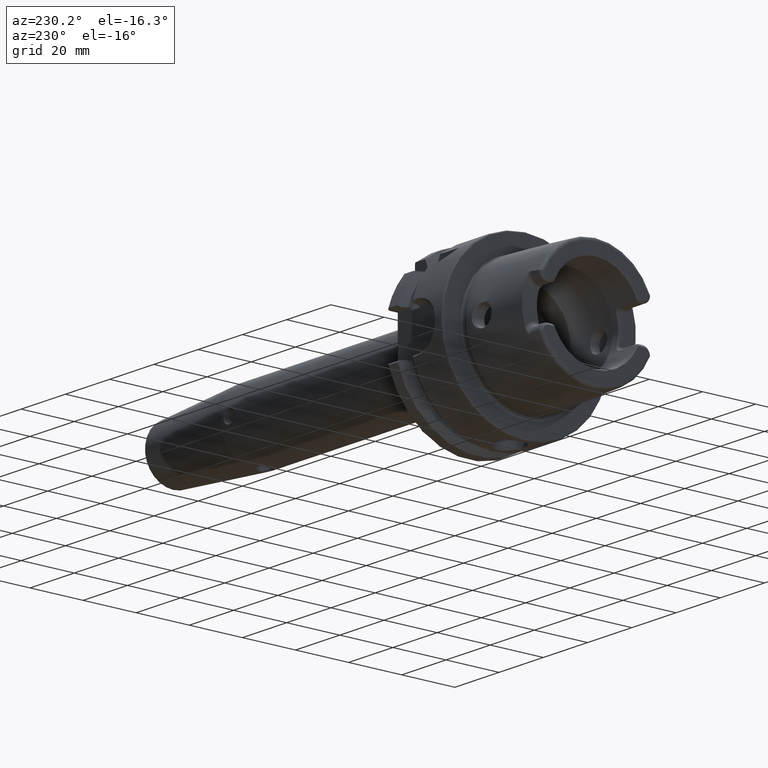
[diagram: clean part render]
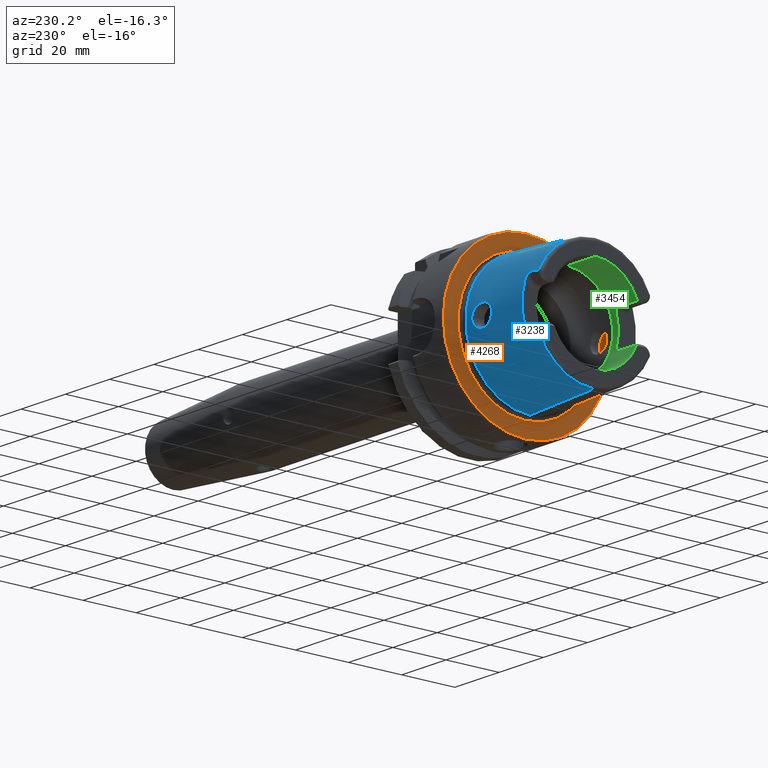
[diagram: same view with three faces highlighted in distinct colors, each labeled with its STEP entity id]
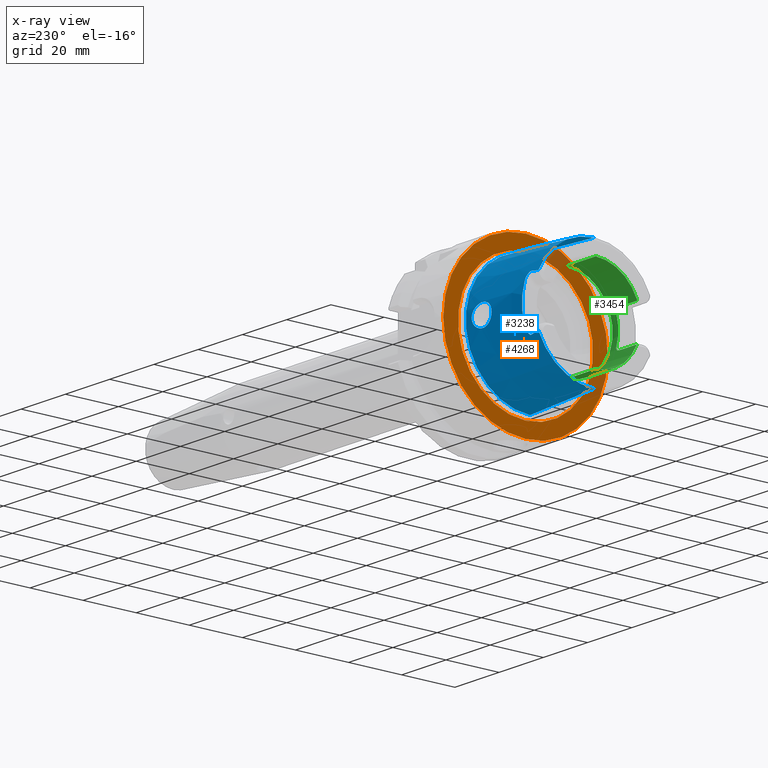
[diagram: x-ray of the same camera — body ghosted, the three highlighted faces saturated]
A machine part, auxiliary view with three faces highlighted in distinct colors.
The next image is the same camera in x-ray (body ghosted, the three faces saturated) — at least one of them is partly hidden behind the body in this view.
Their STEP definitions:

[orange] entity #4268 — the highlighted planar face has unit normal (1, 0, 0).
#1111=CARTESIAN_POINT('',(0.E0,0.E0,0.E0));
#1112=DIRECTION('',(1.E0,0.E0,0.E0));
#1113=DIRECTION('',(0.E0,0.E0,-1.E0));
#1114=AXIS2_PLACEMENT_3D('',#1111,#1112,#1113);
#1116=CARTESIAN_POINT('',(0.E0,0.E0,0.E0));
#1117=DIRECTION('',(1.E0,0.E0,0.E0));
#1118=DIRECTION('',(0.E0,0.E0,1.E0));
#1119=AXIS2_PLACEMENT_3D('',#1116,#1117,#1118);
#1121=CARTESIAN_POINT('',(0.E0,0.E0,0.E0));
#1122=DIRECTION('',(-1.E0,0.E0,0.E0));
#1123=DIRECTION('',(0.E0,0.E0,1.E0));
#1124=AXIS2_PLACEMENT_3D('',#1121,#1122,#1123);
#1126=CARTESIAN_POINT('',(0.E0,0.E0,0.E0));
#1127=DIRECTION('',(-1.E0,0.E0,0.E0));
#1128=DIRECTION('',(0.E0,0.E0,-1.E0));
#1129=AXIS2_PLACEMENT_3D('',#1126,#1127,#1128);
#2743=CARTESIAN_POINT('',(0.E0,0.E0,-2.54204E1));
#2744=CARTESIAN_POINT('',(0.E0,0.E0,2.54204E1));
#2745=VERTEX_POINT('',#2743);
#2746=VERTEX_POINT('',#2744);
#3072=CARTESIAN_POINT('',(0.E0,0.E0,3.1E1));
#3073=CARTESIAN_POINT('',(0.E0,1.138921523207E-14,-3.1E1));
#3074=VERTEX_POINT('',#3072);
#3075=VERTEX_POINT('',#3073);
#4252=CARTESIAN_POINT('',(0.E0,0.E0,0.E0));
#4253=DIRECTION('',(1.E0,0.E0,0.E0));
#4254=DIRECTION('',(0.E0,0.E0,1.E0));
#4255=AXIS2_PLACEMENT_3D('',#4252,#4253,#4254);
#4256=PLANE('',#4255);
#4257=ORIENTED_EDGE('',*,*,#4242,.F.);
#4259=ORIENTED_EDGE('',*,*,#4258,.F.);
#4260=EDGE_LOOP('',(#4257,#4259));
#4261=FACE_OUTER_BOUND('',#4260,.F.);
#4263=ORIENTED_EDGE('',*,*,#4262,.F.);
#4265=ORIENTED_EDGE('',*,*,#4264,.F.);
#4266=EDGE_LOOP('',(#4263,#4265));
#4267=FACE_BOUND('',#4266,.F.);
#4268=ADVANCED_FACE('',(#4261,#4267),#4256,.F.);
#1115=CIRCLE('',#1114,2.54204E1);
#1120=CIRCLE('',#1119,2.54204E1);
#1125=CIRCLE('',#1124,3.1E1);
#1130=CIRCLE('',#1129,3.1E1);
#4242=EDGE_CURVE('',#3074,#3075,#1125,.T.);
#4258=EDGE_CURVE('',#3075,#3074,#1130,.T.);
#4262=EDGE_CURVE('',#2745,#2746,#1115,.T.);
#4264=EDGE_CURVE('',#2746,#2745,#1120,.T.);

[blue] entity #3238 — the highlighted conical surface has half-angle 2.868 deg.
#2=CARTESIAN_POINT('',(-3.086004333271E1,0.E0,0.E0));
#3=DIRECTION('',(-1.E0,0.E0,0.E0));
#4=DIRECTION('',(0.E0,9.163649919573E-1,-4.003438540993E-1));
#5=AXIS2_PLACEMENT_3D('',#2,#3,#4);
#7=CARTESIAN_POINT('',(-2.000078966146E0,0.E0,0.E0));
#8=DIRECTION('',(-1.E0,0.E0,0.E0));
#9=DIRECTION('',(0.E0,0.E0,1.E0));
#10=AXIS2_PLACEMENT_3D('',#7,#8,#9);
#12=CARTESIAN_POINT('',(-3.086004333271E1,0.E0,0.E0));
#13=DIRECTION('',(-1.E0,0.E0,0.E0));
#14=DIRECTION('',(0.E0,0.E0,1.E0));
#15=AXIS2_PLACEMENT_3D('',#12,#13,#14);
#17=CARTESIAN_POINT('',(-3.086004333271E1,2.086981840766E1,9.117659021249E0));
#18=CARTESIAN_POINT('',(-3.053477016229E1,2.087026407252E1,9.157343468693E0));
#19=CARTESIAN_POINT('',(-2.990731725920E1,2.086951854295E1,9.237138009720E0));
#20=CARTESIAN_POINT('',(-2.903749175968E1,2.086333964170E1,9.358087934639E0));
#21=CARTESIAN_POINT('',(-2.823306039663E1,2.085177035668E1,9.481640423811E0));
#22=CARTESIAN_POINT('',(-2.773735868303E1,2.083999307163E1,9.567019157167E0));
#23=CARTESIAN_POINT('',(-2.75E1,2.083289994314E1,9.610781850025E0));
#25=CARTESIAN_POINT('',(-3.086004333271E1,2.086981840766E1,-9.117659021249E0));
#26=CARTESIAN_POINT('',(-3.053477016229E1,2.087026407252E1,-9.157343468693E0));
#27=CARTESIAN_POINT('',(-2.990731725920E1,2.086951854295E1,-9.237138009720E0));
#28=CARTESIAN_POINT('',(-2.903749175968E1,2.086333964170E1,-9.358087934639E0));
#29=CARTESIAN_POINT('',(-2.823306039663E1,2.085177035668E1,-9.481640423811E0));
#30=CARTESIAN_POINT('',(-2.773735868303E1,2.083999307163E1,-9.567019157167E0));
#31=CARTESIAN_POINT('',(-2.75E1,2.083289994314E1,-9.610781850025E0));
#33=CARTESIAN_POINT('',(-1.304439190524E1,2.366711362744E1,0.E0));
#34=CARTESIAN_POINT('',(-1.304439190524E1,2.366711362744E1,-2.692296203512E-1));
#35=CARTESIAN_POINT('',(-1.298596588633E1,2.366095548437E1,-7.915478808268E-1));
#36=CARTESIAN_POINT('',(-1.273593529021E1,2.363615494345E1,-1.538491121410E0));
#37=CARTESIAN_POINT('',(-1.234085581199E1,2.360161826823E1,-2.213541098239E0));
#38=CARTESIAN_POINT('',(-1.181419542757E1,2.356442533815E1,-2.805250832799E0));
#39=CARTESIAN_POINT('',(-1.117137997799E1,2.353291472613E1,-3.293080560877E0));
#40=CARTESIAN_POINT('',(-1.044411763446E1,2.351584278645E1,-3.653416998785E0));
#41=CARTESIAN_POINT('',(-9.665961713705E0,2.351947741575E1,-3.874611692795E0));
#42=CARTESIAN_POINT('',(-8.868249773196E0,2.354653765362E1,-3.954597009881E0));
#43=CARTESIAN_POINT('',(-8.066538054402E0,2.359739017255E1,-3.894486132971E0));
#44=CARTESIAN_POINT('',(-7.282895667530E0,2.366966238930E1,-3.694792672991E0));
#45=CARTESIAN_POINT('',(-6.526798753436E0,2.376050761714E1,-3.345491144455E0));
#46=CARTESIAN_POINT('',(-5.863814319433E0,2.385701628222E1,-2.868853306938E0));
#47=CARTESIAN_POINT('',(-5.312865344565E0,2.394874241525E1,-2.282242940895E0));
#48=CARTESIAN_POINT('',(-4.894562356430E0,2.402528280422E1,-1.608353345469E0));
#49=CARTESIAN_POINT('',(-4.618382192889E0,2.407904412959E1,-8.401112834544E-1));
#50=CARTESIAN_POINT('',(-4.550876813471E0,2.409262908457E1,-2.877835390342E-1));
#51=CARTESIAN_POINT('',(-4.550876813471E0,2.409262908457E1,0.E0));
#53=CARTESIAN_POINT('',(-4.550876813471E0,2.409262908457E1,0.E0));
#54=CARTESIAN_POINT('',(-4.550876813471E0,2.409262908457E1,2.859611557422E-1));
#55=CARTESIAN_POINT('',(-4.617596309412E0,2.407920413971E1,8.352613928779E-1));
#56=CARTESIAN_POINT('',(-4.890694973026E0,2.402602347294E1,1.599880277375E0));
#57=CARTESIAN_POINT('',(-5.306466792903E0,2.394987071124E1,2.273906799261E0));
#58=CARTESIAN_POINT('',(-5.856510230644E0,2.385815053501E1,2.862665496108E0));
#59=CARTESIAN_POINT('',(-6.521241332787E0,2.376122989035E1,3.342466827978E0));
#60=CARTESIAN_POINT('',(-7.278646414858E0,2.367010677752E1,3.693348295885E0));
#61=CARTESIAN_POINT('',(-8.062694821519E0,2.359768581097E1,3.893886174943E0));
#62=CARTESIAN_POINT('',(-8.864889034770E0,2.354669857096E1,3.954654604967E0));
#63=CARTESIAN_POINT('',(-9.662752662742E0,2.351953711749E1,3.875232791745E0));
#64=CARTESIAN_POINT('',(-1.044126794827E1,2.351581579089E1,3.654504198045E0));
#65=CARTESIAN_POINT('',(-1.116829063931E1,2.353280579750E1,3.294940241881E0));
#66=CARTESIAN_POINT('',(-1.181105545196E1,2.356423840462E1,2.808070161338E0));
#67=CARTESIAN_POINT('',(-1.233792159236E1,2.360138355943E1,2.217544614980E0));
#68=CARTESIAN_POINT('',(-1.273424784845E1,2.363599247778E1,1.542402709130E0));
#69=CARTESIAN_POINT('',(-1.298554429293E1,2.366091077517E1,7.941137450600E-1));
#70=CARTESIAN_POINT('',(-1.304439190524E1,2.366711362744E1,2.702086010916E-1));
#71=CARTESIAN_POINT('',(-1.304439190524E1,2.366711362744E1,0.E0));
#144=CARTESIAN_POINT('',(-2.75E1,2.083289994314E1,-9.610781850025E0));
#145=CARTESIAN_POINT('',(-2.743975062531E1,2.083109947580E1,-9.621890248698E0));
#146=CARTESIAN_POINT('',(-2.731974848713E1,2.083872619074E1,-9.619737940193E0));
#147=CARTESIAN_POINT('',(-2.713788283439E1,2.088499706769E1,-9.541042090458E0));
#148=CARTESIAN_POINT('',(-2.696734572208E1,2.095414112914E1,-9.409321527965E0));
#149=CARTESIAN_POINT('',(-2.680749153758E1,2.103583876480E1,-9.245355378728E0));
#150=CARTESIAN_POINT('',(-2.665257735252E1,2.112843537783E1,-9.051716021862E0));
#151=CARTESIAN_POINT('',(-2.650302698832E1,2.123047210424E1,-8.829512386182E0));
#152=CARTESIAN_POINT('',(-2.636248241751E1,2.133984318010E1,-8.581008391494E0));
#153=CARTESIAN_POINT('',(-2.623108108915E1,2.145913591165E1,-8.296954135832E0));
#154=CARTESIAN_POINT('',(-2.611489180659E1,2.158976731555E1,-7.968405102356E0));
#155=CARTESIAN_POINT('',(-2.602652288189E1,2.173158022596E1,-7.587530024420E0));
#156=CARTESIAN_POINT('',(-2.6E1,2.183164499938E1,-7.296342131266E0));
#157=CARTESIAN_POINT('',(-2.6E1,2.188224159781E1,-7.141305064401E0));
#173=CARTESIAN_POINT('',(-2.6E1,0.E0,0.E0));
#174=DIRECTION('',(1.E0,0.E0,0.E0));
#175=DIRECTION('',(0.E0,9.506556522061E-1,-3.102480151887E-1));
#176=AXIS2_PLACEMENT_3D('',#173,#174,#175);
#1277=DIRECTION('',(-9.987474310439E-1,-1.043943059125E-10,-5.003567710383E-2));
#1278=VECTOR('',#1277,2.889623723507E1);
#1279=CARTESIAN_POINT('',(-2.000000627352E0,3.013169918385E-9,
2.422041252602E1));
#1280=LINE('',#1279,#1278);
#1286=DIRECTION('',(-9.987474310439E-1,1.043954859780E-10,5.003567710383E-2));
#1287=VECTOR('',#1286,2.889623723507E1);
#1288=CARTESIAN_POINT('',(-2.000000627352E0,-3.013171862045E-9,
-2.422041252602E1));
#1289=LINE('',#1288,#1287);
#1445=CARTESIAN_POINT('',(-2.6E1,2.188224159781E1,7.141305064400E0));
#1446=CARTESIAN_POINT('',(-2.6E1,2.183974716074E1,7.271515653360E0));
#1447=CARTESIAN_POINT('',(-2.601871282871E1,2.175468164903E1,7.521324142367E0));
#1448=CARTESIAN_POINT('',(-2.608831272694E1,2.162788937119E1,7.867819964950E0));
#1449=CARTESIAN_POINT('',(-2.618560132166E1,2.150728532315E1,8.177555427085E0));
#1450=CARTESIAN_POINT('',(-2.630091098865E1,2.139363544444E1,8.454351951900E0));
#1451=CARTESIAN_POINT('',(-2.642777532615E1,2.128749113051E1,8.701079139516E0));
#1452=CARTESIAN_POINT('',(-2.656205230822E1,2.118893349758E1,8.920855574258E0));
#1453=CARTESIAN_POINT('',(-2.670233126283E1,2.109762227452E1,9.116811046229E0));
#1454=CARTESIAN_POINT('',(-2.684756686438E1,2.101419232942E1,9.289367907590E0));
#1455=CARTESIAN_POINT('',(-2.700261207520E1,2.093857757737E1,9.439508455813E0));
#1456=CARTESIAN_POINT('',(-2.716024259459E1,2.087834082786E1,9.552833408787E0));
#1457=CARTESIAN_POINT('',(-2.733041362146E1,2.083774391445E1,9.620584457154E0));
#1458=CARTESIAN_POINT('',(-2.744319606554E1,2.083120243791E1,9.621255000217E0));
#1459=CARTESIAN_POINT('',(-2.75E1,2.083289994314E1,9.610781850025E0));
#2751=CARTESIAN_POINT('',(-2.000078966146E0,0.E0,-2.422042115892E1));
#2752=CARTESIAN_POINT('',(-2.000078966146E0,0.E0,2.422042115892E1));
#2753=VERTEX_POINT('',#2751);
#2754=VERTEX_POINT('',#2752);
#2896=CARTESIAN_POINT('',(-2.6E1,2.188224159781E1,-7.141305064400E0));
#2898=VERTEX_POINT('',#2896);
#2900=CARTESIAN_POINT('',(-2.75E1,2.083289994314E1,-9.610781850025E0));
#2902=VERTEX_POINT('',#2900);
#2904=CARTESIAN_POINT('',(-2.75E1,2.083289994314E1,9.610781850025E0));
#2906=VERTEX_POINT('',#2904);
#2908=CARTESIAN_POINT('',(-2.6E1,2.188224159781E1,7.141305064400E0));
#2910=VERTEX_POINT('',#2908);
#2926=CARTESIAN_POINT('',(-3.086004333271E1,0.E0,-2.277456973022E1));
#2928=VERTEX_POINT('',#2926);
#2930=CARTESIAN_POINT('',(-3.086004333271E1,2.086981840766E1,
-9.117659021249E0));
#2931=VERTEX_POINT('',#2930);
#2932=CARTESIAN_POINT('',(-3.086004333271E1,0.E0,2.277456973022E1));
#2933=CARTESIAN_POINT('',(-3.086004333271E1,2.086981840766E1,9.117659021249E0));
#2934=VERTEX_POINT('',#2932);
#2935=VERTEX_POINT('',#2933);
#3014=VERTEX_POINT('',#33);
#3015=VERTEX_POINT('',#51);
#3205=CARTESIAN_POINT('',(-1.643002229390E1,0.E0,0.E0));
#3206=DIRECTION('',(1.E0,0.E0,0.E0));
#3207=DIRECTION('',(0.E0,0.E0,1.E0));
#3208=AXIS2_PLACEMENT_3D('',#3205,#3206,#3207);
#3209=CONICAL_SURFACE('',#3208,2.349749739118E1,2.86805556E0);
#3211=ORIENTED_EDGE('',*,*,#3210,.T.);
#3213=ORIENTED_EDGE('',*,*,#3212,.F.);
#3215=ORIENTED_EDGE('',*,*,#3214,.F.);
#3217=ORIENTED_EDGE('',*,*,#3216,.T.);
#3219=ORIENTED_EDGE('',*,*,#3218,.T.);
#3221=ORIENTED_EDGE('',*,*,#3220,.T.);
#3223=ORIENTED_EDGE('',*,*,#3222,.F.);
#3225=ORIENTED_EDGE('',*,*,#3224,.F.);
#3227=ORIENTED_EDGE('',*,*,#3226,.F.);
#3229=ORIENTED_EDGE('',*,*,#3228,.F.);
#3230=EDGE_LOOP('',(#3211,#3213,#3215,#3217,#3219,#3221,#3223,#3225,#3227,
#3229));
#3231=FACE_OUTER_BOUND('',#3230,.F.);
#3233=ORIENTED_EDGE('',*,*,#3232,.F.);
#3235=ORIENTED_EDGE('',*,*,#3234,.F.);
#3236=EDGE_LOOP('',(#3233,#3235));
#3237=FACE_BOUND('',#3236,.F.);
#3238=ADVANCED_FACE('',(#3231,#3237),#3209,.T.);
#6=CIRCLE('',#5,2.277456973022E1);
#11=CIRCLE('',#10,2.422042115892E1);
#16=CIRCLE('',#15,2.277456973022E1);
#24=B_SPLINE_CURVE_WITH_KNOTS('',3,(#17,#18,#19,#20,#21,#22,#23),.UNSPECIFIED.,
.F.,.F.,(4,1,1,1,4),(0.E0,2.5E-1,5.E-1,7.5E-1,1.E0),.UNSPECIFIED.);
#32=B_SPLINE_CURVE_WITH_KNOTS('',3,(#25,#26,#27,#28,#29,#30,#31),.UNSPECIFIED.,
.F.,.F.,(4,1,1,1,4),(0.E0,2.5E-1,5.E-1,7.5E-1,1.E0),.UNSPECIFIED.);
#52=B_SPLINE_CURVE_WITH_KNOTS('',3,(#33,#34,#35,#36,#37,#38,#39,#40,#41,#42,#43,
#44,#45,#46,#47,#48,#49,#50,#51),.UNSPECIFIED.,.F.,.F.,(4,1,1,1,1,1,1,1,1,1,1,1,
1,1,1,1,4),(0.E0,6.25E-2,1.25E-1,1.875E-1,2.5E-1,3.125E-1,3.75E-1,4.375E-1,
5.E-1,5.625E-1,6.25E-1,6.875E-1,7.5E-1,8.125E-1,8.75E-1,9.375E-1,1.E0),
.UNSPECIFIED.);
#72=B_SPLINE_CURVE_WITH_KNOTS('',3,(#53,#54,#55,#56,#57,#58,#59,#60,#61,#62,#63,
#64,#65,#66,#67,#68,#69,#70,#71),.UNSPECIFIED.,.F.,.F.,(4,1,1,1,1,1,1,1,1,1,1,1,
1,1,1,1,4),(0.E0,6.25E-2,1.25E-1,1.875E-1,2.5E-1,3.125E-1,3.75E-1,4.375E-1,
5.E-1,5.625E-1,6.25E-1,6.875E-1,7.5E-1,8.125E-1,8.75E-1,9.375E-1,1.E0),
.UNSPECIFIED.);
#158=B_SPLINE_CURVE_WITH_KNOTS('',3,(#144,#145,#146,#147,#148,#149,#150,#151,
#152,#153,#154,#155,#156,#157),.UNSPECIFIED.,.F.,.F.,(4,1,1,1,1,1,1,1,1,1,1,4),(
0.E0,9.090909090909E-2,1.818181818182E-1,2.727272727273E-1,3.636363636364E-1,
4.545454545455E-1,5.454545454545E-1,6.363636363636E-1,7.272727272727E-1,
8.181818181818E-1,9.090909090909E-1,1.E0),.UNSPECIFIED.);
#177=CIRCLE('',#176,2.301805237998E1);
#1460=B_SPLINE_CURVE_WITH_KNOTS('',3,(#1445,#1446,#1447,#1448,#1449,#1450,#1451,
#1452,#1453,#1454,#1455,#1456,#1457,#1458,#1459),.UNSPECIFIED.,.F.,.F.,(4,1,1,1,
1,1,1,1,1,1,1,1,4),(0.E0,8.333333333333E-2,1.666666666667E-1,2.5E-1,
3.333333333333E-1,4.166666666667E-1,5.E-1,5.833333333333E-1,6.666666666667E-1,
7.5E-1,8.333333333333E-1,9.166666666667E-1,1.E0),.UNSPECIFIED.);
#3210=EDGE_CURVE('',#2931,#2928,#6,.T.);
#3212=EDGE_CURVE('',#2753,#2928,#1289,.T.);
#3214=EDGE_CURVE('',#2754,#2753,#11,.T.);
#3216=EDGE_CURVE('',#2754,#2934,#1280,.T.);
#3218=EDGE_CURVE('',#2934,#2935,#16,.T.);
#3220=EDGE_CURVE('',#2935,#2906,#24,.T.);
#3222=EDGE_CURVE('',#2910,#2906,#1460,.T.);
#3224=EDGE_CURVE('',#2898,#2910,#177,.T.);
#3226=EDGE_CURVE('',#2902,#2898,#158,.T.);
#3228=EDGE_CURVE('',#2931,#2902,#32,.T.);
#3232=EDGE_CURVE('',#3014,#3015,#52,.T.);
#3234=EDGE_CURVE('',#3015,#3014,#72,.T.);

[green] entity #3454 — the highlighted cylindrical surface (partial cylindrical patch) has radius 17 mm, axis along (1, 0, 0).
#272=CARTESIAN_POINT('',(-3.15E1,0.E0,0.E0));
#273=DIRECTION('',(1.E0,0.E0,0.E0));
#274=DIRECTION('',(0.E0,-9.221396591734E-1,-3.868571428571E-1));
#275=AXIS2_PLACEMENT_3D('',#272,#273,#274);
#277=DIRECTION('',(-1.E0,-6.903792289323E-9,3.402218956798E-11));
#278=VECTOR('',#277,1.250397459548E1);
#279=CARTESIAN_POINT('',(-1.899602540378E1,0.E0,-1.7E1));
#280=LINE('',#279,#278);
#281=CARTESIAN_POINT('',(-1.899602540378E1,0.E0,0.E0));
#282=DIRECTION('',(1.E0,0.E0,0.E0));
#283=DIRECTION('',(0.E0,0.E0,1.E0));
#284=AXIS2_PLACEMENT_3D('',#281,#282,#283);
#286=DIRECTION('',(-1.E0,2.385283683508E-9,-3.366909743156E-11));
#287=VECTOR('',#286,1.271529946137E1);
#288=CARTESIAN_POINT('',(-1.899602540378E1,0.E0,1.7E1));
#289=LINE('',#288,#287);
#290=CARTESIAN_POINT('',(-3.171132486541E1,0.E0,0.E0));
#291=DIRECTION('',(1.E0,0.E0,0.E0));
#292=DIRECTION('',(0.E0,0.E0,1.E0));
#293=AXIS2_PLACEMENT_3D('',#290,#291,#292);
#295=CARTESIAN_POINT('',(-3.171132486541E1,-1.558889454291E1,6.781324865405E0));
#296=CARTESIAN_POINT('',(-3.164317732329E1,-1.561853940455E1,6.713177323292E0));
#297=CARTESIAN_POINT('',(-3.157492591239E1,-1.564769805039E1,6.644925912391E0));
#298=CARTESIAN_POINT('',(-3.150657142857E1,-1.567637420595E1,6.576571428571E0));
#300=DIRECTION('',(-1.E0,7.806493534994E-11,1.337470641800E-10));
#301=VECTOR('',#300,8.006571291236E0);
#302=CARTESIAN_POINT('',(-2.350000013733E1,-1.567637420657E1,6.576571427501E0));
#303=LINE('',#302,#301);
#304=CARTESIAN_POINT('',(-2.149999999319E1,-1.635630409315E1,4.633715190920E0));
#305=CARTESIAN_POINT('',(-2.149837670162E1,-1.630683774285E1,4.808323859179E0));
#306=CARTESIAN_POINT('',(-2.154698674048E1,-1.620558232555E1,5.145031375457E0));
#307=CARTESIAN_POINT('',(-2.175634281348E1,-1.604191635076E1,5.633411327769E0));
#308=CARTESIAN_POINT('',(-2.209010361832E1,-1.589109359561E1,6.043372323205E0));
#309=CARTESIAN_POINT('',(-2.251604562885E1,-1.576970087508E1,6.351365719671E0));
#310=CARTESIAN_POINT('',(-2.300654217394E1,-1.569288971245E1,6.537435918996E0));
#311=CARTESIAN_POINT('',(-2.333316767882E1,-1.567591106793E1,6.577675397064E0));
#312=CARTESIAN_POINT('',(-2.350000013733E1,-1.567637420657E1,6.576571427501E0));
#314=CARTESIAN_POINT('',(-2.15E1,0.E0,0.E0));
#315=DIRECTION('',(-1.E0,0.E0,0.E0));
#316=DIRECTION('',(0.E0,-9.621355498715E-1,-2.725714285714E-1));
#317=AXIS2_PLACEMENT_3D('',#314,#315,#316);
#319=CARTESIAN_POINT('',(-2.349999986317E1,-1.567637420552E1,
-6.576571429211E0));
#320=CARTESIAN_POINT('',(-2.332970719140E1,-1.567611857761E1,
-6.577180761720E0));
#321=CARTESIAN_POINT('',(-2.299840942678E1,-1.569359910657E1,
-6.535750833257E0));
#322=CARTESIAN_POINT('',(-2.251183524324E1,-1.577082022066E1,
-6.348574599471E0));
#323=CARTESIAN_POINT('',(-2.208814623726E1,-1.589177064458E1,
-6.041605818138E0));
#324=CARTESIAN_POINT('',(-2.175385506539E1,-1.604330085675E1,
-5.629517468253E0));
#325=CARTESIAN_POINT('',(-2.154614938594E1,-1.620674011477E1,
-5.141319066030E0));
#326=CARTESIAN_POINT('',(-2.149842226301E1,-1.630728005799E1,
-4.806762546710E0));
#327=CARTESIAN_POINT('',(-2.150000000035E1,-1.635630437232E1,
-4.633714197965E0));
#329=DIRECTION('',(9.999999410129E-1,1.989017162463E-4,-2.800220290254E-4));
#330=VECTOR('',#329,8.002685056695E0);
#331=CARTESIAN_POINT('',(-3.150268444781E1,-1.567796595331E1,
-6.574330501103E0));
#332=LINE('',#331,#330);
#2707=CARTESIAN_POINT('',(-1.899602540378E1,0.E0,-1.7E1));
#2708=CARTESIAN_POINT('',(-1.899602540378E1,0.E0,1.7E1));
#2709=VERTEX_POINT('',#2707);
#2710=VERTEX_POINT('',#2708);
#2886=VERTEX_POINT('',#304);
#2887=VERTEX_POINT('',#312);
#2890=CARTESIAN_POINT('',(-2.15E1,-1.635630434782E1,-4.633714285714E0));
#2891=VERTEX_POINT('',#2890);
#2894=VERTEX_POINT('',#319);
#2922=CARTESIAN_POINT('',(-3.149999999926E1,-8.632484131626E-8,
-1.699999999957E1));
#2923=VERTEX_POINT('',#2922);
#2924=CARTESIAN_POINT('',(-3.171132486516E1,3.032959373375E-8,
1.699999999957E1));
#2925=VERTEX_POINT('',#2924);
#2944=VERTEX_POINT('',#295);
#2945=VERTEX_POINT('',#298);
#2964=CARTESIAN_POINT('',(-3.150268444781E1,-1.567796595331E1,
-6.574330501103E0));
#2965=VERTEX_POINT('',#2964);
#3427=CARTESIAN_POINT('',(0.E0,0.E0,0.E0));
#3428=DIRECTION('',(1.E0,0.E0,0.E0));
#3429=DIRECTION('',(0.E0,0.E0,1.E0));
#3430=AXIS2_PLACEMENT_3D('',#3427,#3428,#3429);
#3431=CYLINDRICAL_SURFACE('',#3430,1.7E1);
#3433=ORIENTED_EDGE('',*,*,#3432,.T.);
#3434=ORIENTED_EDGE('',*,*,#3408,.F.);
#3436=ORIENTED_EDGE('',*,*,#3435,.F.);
#3437=ORIENTED_EDGE('',*,*,#3404,.T.);
#3439=ORIENTED_EDGE('',*,*,#3438,.T.);
#3441=ORIENTED_EDGE('',*,*,#3440,.T.);
#3443=ORIENTED_EDGE('',*,*,#3442,.F.);
#3445=ORIENTED_EDGE('',*,*,#3444,.F.);
#3447=ORIENTED_EDGE('',*,*,#3446,.F.);
#3449=ORIENTED_EDGE('',*,*,#3448,.F.);
#3451=ORIENTED_EDGE('',*,*,#3450,.F.);
#3452=EDGE_LOOP('',(#3433,#3434,#3436,#3437,#3439,#3441,#3443,#3445,#3447,#3449,
#3451));
#3453=FACE_OUTER_BOUND('',#3452,.F.);
#3454=ADVANCED_FACE('',(#3453),#3431,.F.);
#276=CIRCLE('',#275,1.7E1);
#285=CIRCLE('',#284,1.7E1);
#294=CIRCLE('',#293,1.7E1);
#299=B_SPLINE_CURVE_WITH_KNOTS('',3,(#295,#296,#297,#298),.UNSPECIFIED.,.F.,.F.,
(4,4),(0.E0,1.E0),.UNSPECIFIED.);
#313=B_SPLINE_CURVE_WITH_KNOTS('',3,(#304,#305,#306,#307,#308,#309,#310,#311,
#312),.UNSPECIFIED.,.F.,.F.,(4,1,1,1,1,1,4),(0.E0,1.666666666667E-1,
3.333333333333E-1,5.E-1,6.666666666667E-1,8.333333333333E-1,1.E0),
.UNSPECIFIED.);
#318=CIRCLE('',#317,1.7E1);
#328=B_SPLINE_CURVE_WITH_KNOTS('',3,(#319,#320,#321,#322,#323,#324,#325,#326,
#327),.UNSPECIFIED.,.F.,.F.,(4,1,1,1,1,1,4),(0.E0,1.666666666667E-1,
3.333333333333E-1,5.E-1,6.666666666667E-1,8.333333333333E-1,1.E0),
.UNSPECIFIED.);
#3404=EDGE_CURVE('',#2710,#2925,#289,.T.);
#3408=EDGE_CURVE('',#2709,#2923,#280,.T.);
#3432=EDGE_CURVE('',#2965,#2923,#276,.T.);
#3435=EDGE_CURVE('',#2710,#2709,#285,.T.);
#3438=EDGE_CURVE('',#2925,#2944,#294,.T.);
#3440=EDGE_CURVE('',#2944,#2945,#299,.T.);
#3442=EDGE_CURVE('',#2887,#2945,#303,.T.);
#3444=EDGE_CURVE('',#2886,#2887,#313,.T.);
#3446=EDGE_CURVE('',#2891,#2886,#318,.T.);
#3448=EDGE_CURVE('',#2894,#2891,#328,.T.);
#3450=EDGE_CURVE('',#2965,#2894,#332,.T.);